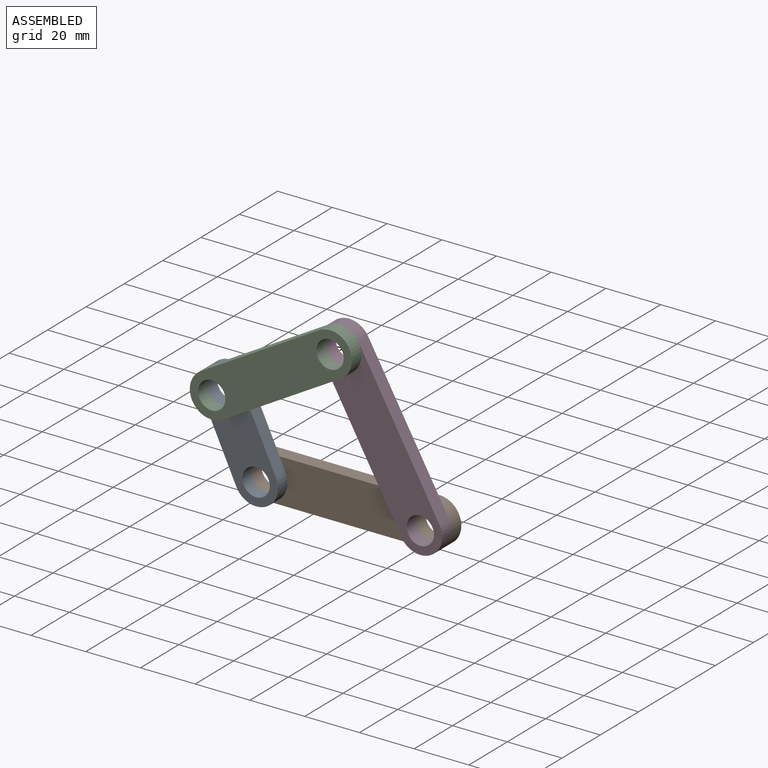
[diagram: assembled view]
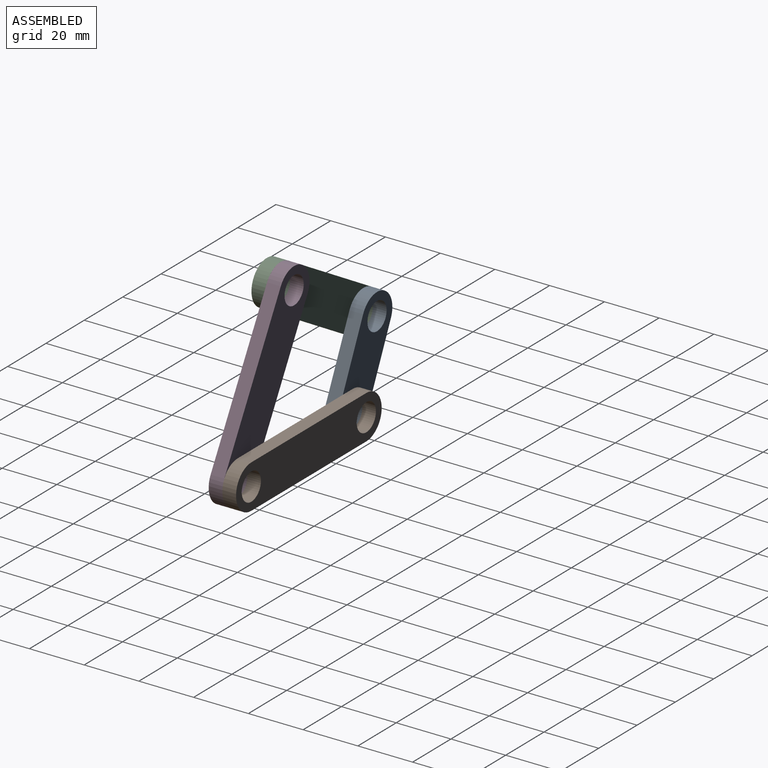
[diagram: assembled view, second angle]
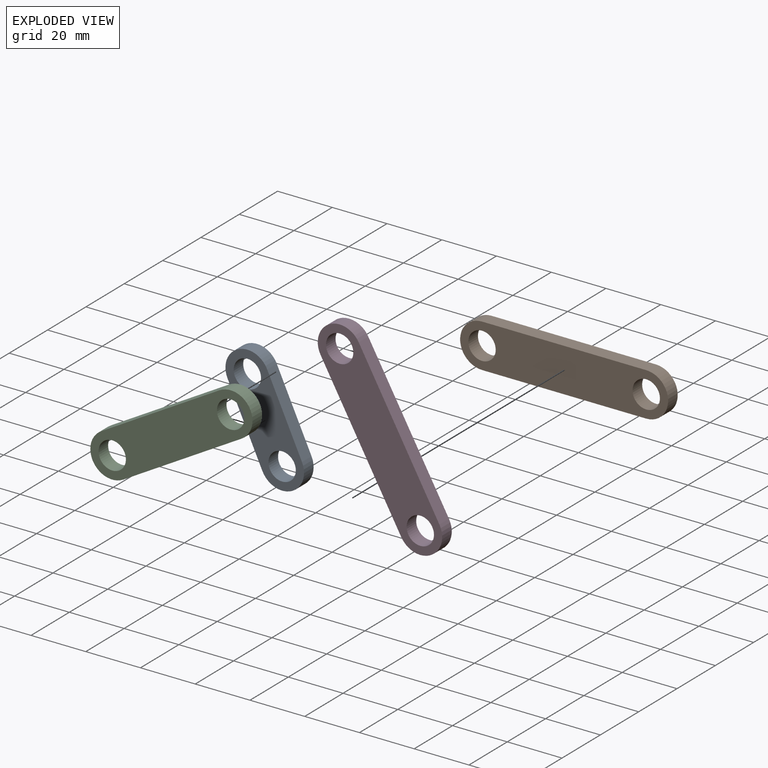
[diagram: exploded view]
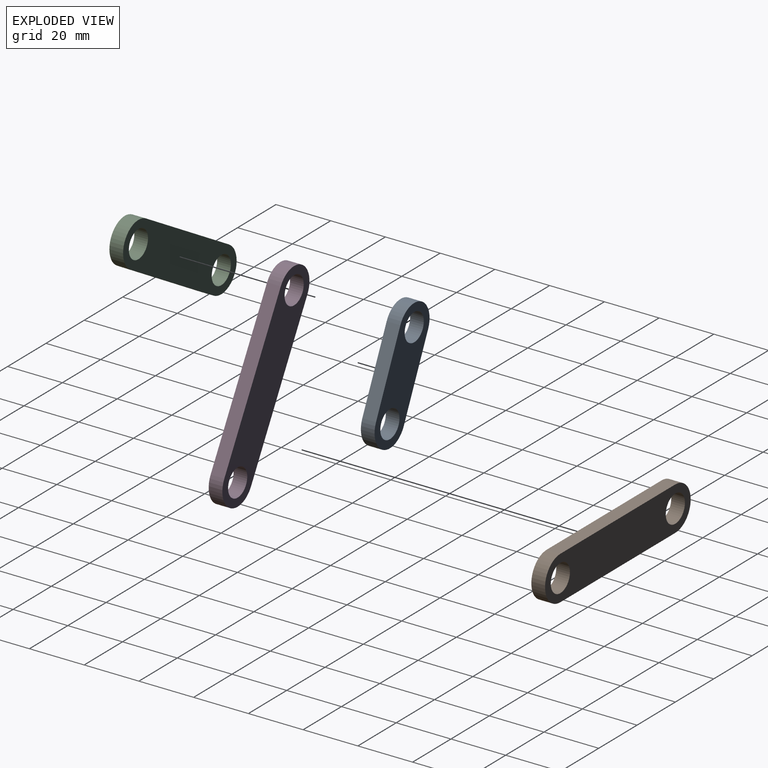
[diagram: exploded view, second angle]
ASSEMBLY  parts=4 mates=8
PART A: 8 faces, bbox 46x5x16 mm
  f0: cylinder r=8mm len=16mm, axis (0,1,0), area 125.7mm2, adj f1,f5,f6,f7
  f1: plane 30x5mm, normal (0,0,1), area 150mm2, adj f0,f2,f6,f7
  f2: cylinder r=8mm len=16mm, axis (0,1,0), area 125.7mm2, adj f1,f5,f6,f7
  f3: cylinder r=5mm len=10mm, axis (0,1,0), area 157.1mm2, adj f6,f7
  f4: cylinder r=5mm len=10mm, axis (0,1,0), area 157.1mm2, adj f6,f7
  f5: plane 30x5mm, normal (0,0,-1), area 150mm2, adj f0,f2,f6,f7
  f6: plane 46x16mm, normal (0,-1,0), area 524mm2, adj f0,f1,f2,f3,f4,f5
  f7: plane 46x16mm, normal (0,1,0), area 524mm2, adj f0,f1,f2,f3,f4,f5
PART B: 8 faces, bbox 76x5x16 mm
  f0: cylinder r=8mm len=16mm, axis (0,1,0), area 125.7mm2, adj f1,f5,f6,f7
  f1: plane 60x5mm, normal (0,0,1), area 300mm2, adj f0,f2,f6,f7
  f2: cylinder r=8mm len=16mm, axis (0,1,0), area 125.7mm2, adj f1,f5,f6,f7
  f3: cylinder r=5mm len=10mm, axis (0,1,0), area 157.1mm2, adj f6,f7
  f4: cylinder r=5mm len=10mm, axis (0,1,0), area 157.1mm2, adj f6,f7
  f5: plane 60x5mm, normal (0,0,-1), area 300mm2, adj f0,f2,f6,f7
  f6: plane 76x16mm, normal (0,-1,0), area 1004mm2, adj f0,f1,f2,f3,f4,f5
  f7: plane 76x16mm, normal (0,1,0), area 1004mm2, adj f0,f1,f2,f3,f4,f5
PART C: 8 faces, bbox 66x5x16 mm
  f0: cylinder r=8mm len=16mm, axis (0,1,0), area 125.7mm2, adj f1,f5,f6,f7
  f1: plane 50x5mm, normal (0,0,1), area 250mm2, adj f0,f2,f6,f7
  f2: cylinder r=8mm len=16mm, axis (0,1,0), area 125.7mm2, adj f1,f5,f6,f7
  f3: cylinder r=5mm len=10mm, axis (0,1,0), area 157.1mm2, adj f6,f7
  f4: cylinder r=5mm len=10mm, axis (0,1,0), area 157.1mm2, adj f6,f7
  f5: plane 50x5mm, normal (0,0,-1), area 250mm2, adj f0,f2,f6,f7
  f6: plane 66x16mm, normal (0,-1,0), area 844mm2, adj f0,f1,f2,f3,f4,f5
  f7: plane 66x16mm, normal (0,1,0), area 844mm2, adj f0,f1,f2,f3,f4,f5
PART D: same geometry as B
PLACE A rot(axis=(0,1,0),64.9deg) t=(18.51,12.98,-6.27)mm
PLACE B t=(54.87,17.98,-19.86)mm fixed
PLACE C rot(axis=(0,-1,0),30.1deg) t=(33.78,7.98,19.86)mm
PLACE D rot(axis=(0,-1,0),119.4deg) t=(70.14,12.98,6.27)mm
MATE planar C.f7 <-> A.f6  axis (0,1,0) through (33.78,10.48,19.86)mm
MATE cylindrical A.f0 <-> B.f2  axis (0,1,0) through (24.87,15.48,-19.86)mm
MATE cylindrical A.f2 <-> C.f2  axis (0,1,0) through (12.16,10.48,7.31)mm
MATE cylindrical D.f0 <-> C.f0  axis (0,1,0) through (55.4,10.48,32.4)mm
MATE planar B.f6 <-> A.f7  axis (0,-1,0) through (54.87,15.48,-19.86)mm
MATE planar C.f7 <-> D.f6  axis (0,1,0) through (33.78,10.48,19.86)mm
MATE planar B.f6 <-> D.f7  axis (0,-1,0) through (54.87,15.48,-19.86)mm
MATE cylindrical D.f2 <-> B.f0  axis (0,1,0) through (84.87,15.48,-19.86)mm
